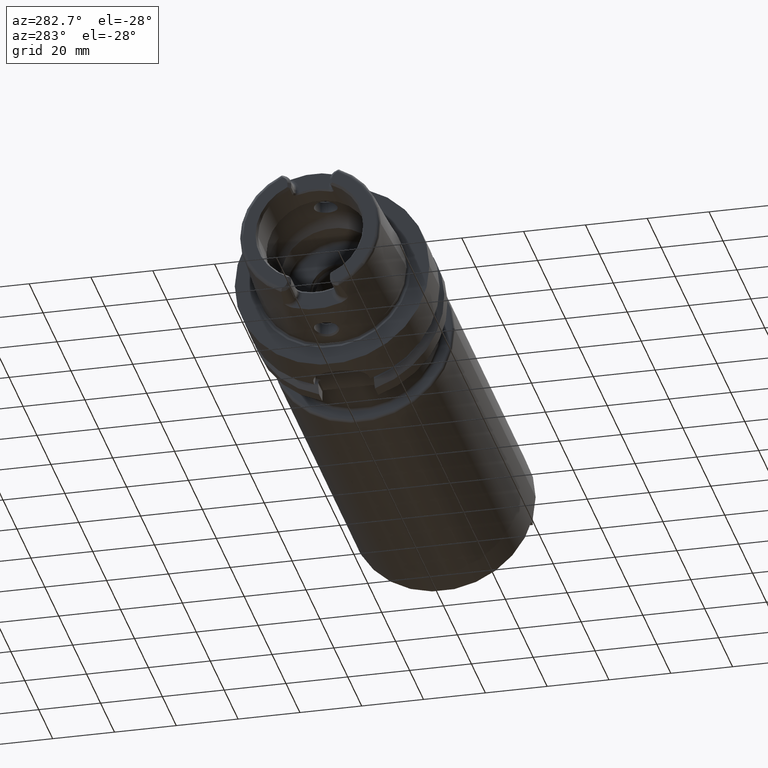
[diagram: clean part render]
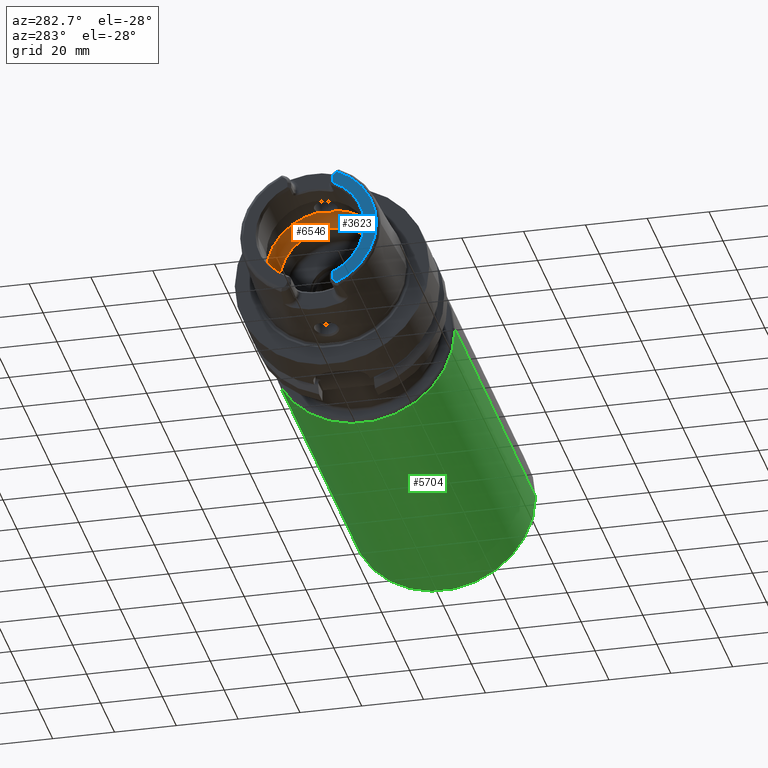
[diagram: same view with three faces highlighted in distinct colors, each labeled with its STEP entity id]
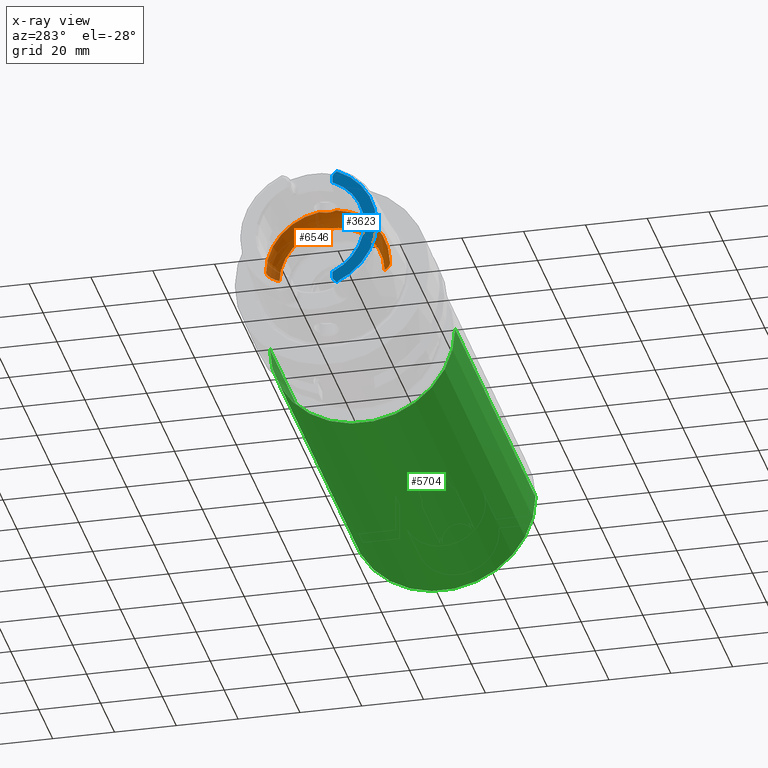
[diagram: x-ray of the same camera — body ghosted, the three highlighted faces saturated]
A machine part, auxiliary view with three faces highlighted in distinct colors.
The next image is the same camera in x-ray (body ghosted, the three faces saturated) — at least one of them is partly hidden behind the body in this view.
Their STEP definitions:

[orange] entity #6546 — the highlighted toroidal blend (fillet) surface has major radius 12 mm and minor (blend) radius 8 mm.
#2471=CARTESIAN_POINT('',(-5.25E0,0.E0,1.992470689575E1));
#2472=CARTESIAN_POINT('',(-5.25E0,1.634249880127E-1,1.992470689575E1));
#2473=CARTESIAN_POINT('',(-5.271317000323E0,4.905125142286E-1,
1.992366860007E1));
#2474=CARTESIAN_POINT('',(-5.367938073203E0,9.753406287590E-1,
1.991846757388E1));
#2475=CARTESIAN_POINT('',(-5.525913254439E0,1.440181253243E0,1.990841194030E1));
#2476=CARTESIAN_POINT('',(-5.745012466850E0,1.883704211740E0,1.989126222791E1));
#2477=CARTESIAN_POINT('',(-6.017092970824E0,2.289932260455E0,1.986481338490E1));
#2478=CARTESIAN_POINT('',(-6.231037578916E0,2.534045566496E0,1.983915065875E1));
#2479=CARTESIAN_POINT('',(-6.344997998398E0,2.648294615690E0,1.982388800484E1));
#2481=CARTESIAN_POINT('',(-6.344997998398E0,-2.648294615690E0,
1.982388800484E1));
#2482=CARTESIAN_POINT('',(-6.231045843136E0,-2.534053851646E0,
1.983914955193E1));
#2483=CARTESIAN_POINT('',(-6.017093742818E0,-2.289943440357E0,
1.986481395775E1));
#2484=CARTESIAN_POINT('',(-5.744901596897E0,-1.883527876206E0,
1.989127237006E1));
#2485=CARTESIAN_POINT('',(-5.525828432433E0,-1.439963272778E0,
1.990841763195E1));
#2486=CARTESIAN_POINT('',(-5.367908372542E0,-9.752317929729E-1,
1.991846926373E1));
#2487=CARTESIAN_POINT('',(-5.271289109403E0,-4.903031116233E-1,
1.992367002777E1));
#2488=CARTESIAN_POINT('',(-5.25E0,-1.633414179458E-1,1.992470689575E1));
#2489=CARTESIAN_POINT('',(-5.25E0,0.E0,1.992470689575E1));
#2491=CARTESIAN_POINT('',(-1.E-1,0.E0,0.E0));
#2492=DIRECTION('',(1.E0,0.E0,0.E0));
#2493=DIRECTION('',(0.E0,1.E0,0.E0));
#2494=AXIS2_PLACEMENT_3D('',#2491,#2492,#2493);
#2516=CARTESIAN_POINT('',(-6.344997998398E0,0.E0,0.E0));
#2517=DIRECTION('',(1.E0,0.E0,0.E0));
#2518=DIRECTION('',(0.E0,1.E0,0.E0));
#2519=AXIS2_PLACEMENT_3D('',#2516,#2517,#2518);
#2521=CARTESIAN_POINT('',(-6.344997998398E0,0.E0,0.E0));
#2522=DIRECTION('',(1.E0,0.E0,0.E0));
#2523=DIRECTION('',(0.E0,-1.324147307845E-1,9.911944002421E-1));
#2524=AXIS2_PLACEMENT_3D('',#2521,#2522,#2523);
#2614=CARTESIAN_POINT('',(-6.344997998398E0,1.2E1,0.E0));
#2615=DIRECTION('',(0.E0,0.E0,1.E0));
#2616=DIRECTION('',(7.806247497998E-1,6.25E-1,0.E0));
#2617=AXIS2_PLACEMENT_3D('',#2614,#2615,#2616);
#2624=CARTESIAN_POINT('',(-6.344997998398E0,-1.2E1,0.E0));
#2625=DIRECTION('',(0.E0,0.E0,-1.E0));
#2626=DIRECTION('',(7.806247497998E-1,-6.25E-1,0.E0));
#2627=AXIS2_PLACEMENT_3D('',#2624,#2625,#2626);
#2893=CARTESIAN_POINT('',(-1.E-1,1.7E1,0.E0));
#2894=VERTEX_POINT('',#2893);
#2895=CARTESIAN_POINT('',(-6.344997998398E0,2.E1,0.E0));
#2896=VERTEX_POINT('',#2895);
#2905=CARTESIAN_POINT('',(-1.E-1,-1.7E1,0.E0));
#2906=VERTEX_POINT('',#2905);
#2907=CARTESIAN_POINT('',(-6.344997998398E0,-2.E1,0.E0));
#2908=VERTEX_POINT('',#2907);
#3076=VERTEX_POINT('',#2471);
#3077=VERTEX_POINT('',#2479);
#3078=VERTEX_POINT('',#2481);
#6527=CARTESIAN_POINT('',(-6.344997998398E0,0.E0,0.E0));
#6528=DIRECTION('',(1.E0,0.E0,0.E0));
#6529=DIRECTION('',(0.E0,-1.E0,0.E0));
#6530=AXIS2_PLACEMENT_3D('',#6527,#6528,#6529);
#6531=TOROIDAL_SURFACE('',#6530,1.2E1,8.E0);
#6532=ORIENTED_EDGE('',*,*,#6504,.F.);
#6533=ORIENTED_EDGE('',*,*,#6270,.F.);
#6535=ORIENTED_EDGE('',*,*,#6534,.T.);
#6537=ORIENTED_EDGE('',*,*,#6536,.F.);
#6539=ORIENTED_EDGE('',*,*,#6538,.F.);
#6541=ORIENTED_EDGE('',*,*,#6540,.T.);
#6543=ORIENTED_EDGE('',*,*,#6542,.T.);
#6544=EDGE_LOOP('',(#6532,#6533,#6535,#6537,#6539,#6541,#6543));
#6545=FACE_OUTER_BOUND('',#6544,.F.);
#6546=ADVANCED_FACE('',(#6545),#6531,.F.);
#2480=B_SPLINE_CURVE_WITH_KNOTS('',3,(#2471,#2472,#2473,#2474,#2475,#2476,#2477,
#2478,#2479),.UNSPECIFIED.,.F.,.F.,(4,1,1,1,1,1,4),(0.E0,1.666666666667E-1,
3.333333333333E-1,5.E-1,6.666666666667E-1,8.333333333333E-1,1.E0),
.UNSPECIFIED.);
#2490=B_SPLINE_CURVE_WITH_KNOTS('',3,(#2481,#2482,#2483,#2484,#2485,#2486,#2487,
#2488,#2489),.UNSPECIFIED.,.F.,.F.,(4,1,1,1,1,1,4),(0.E0,1.666666666667E-1,
3.333333333333E-1,5.E-1,6.666666666667E-1,8.333333333333E-1,1.E0),
.UNSPECIFIED.);
#2495=CIRCLE('',#2494,1.7E1);
#2520=CIRCLE('',#2519,2.E1);
#2525=CIRCLE('',#2524,2.E1);
#2618=CIRCLE('',#2617,8.E0);
#2628=CIRCLE('',#2627,8.E0);
#6270=EDGE_CURVE('',#3078,#3076,#2490,.T.);
#6504=EDGE_CURVE('',#3076,#3077,#2480,.T.);
#6534=EDGE_CURVE('',#3078,#2908,#2525,.T.);
#6536=EDGE_CURVE('',#2906,#2908,#2628,.T.);
#6538=EDGE_CURVE('',#2894,#2906,#2495,.T.);
#6540=EDGE_CURVE('',#2894,#2896,#2618,.T.);
#6542=EDGE_CURVE('',#2896,#3077,#2520,.T.);

[blue] entity #3623 — the highlighted planar face has unit normal (1, 0, 0).
#231=CARTESIAN_POINT('',(-3.2E1,0.E0,0.E0));
#232=DIRECTION('',(-1.E0,0.E0,0.E0));
#233=DIRECTION('',(0.E0,-4.056746540583E-1,-9.140175463604E-1));
#234=AXIS2_PLACEMENT_3D('',#231,#232,#233);
#315=DIRECTION('',(0.E0,0.E0,-1.E0));
#316=VECTOR('',#315,1.666552168805E0);
#317=CARTESIAN_POINT('',(-3.2E1,-7.27E0,-1.600344783120E1));
#318=LINE('',#317,#316);
#319=DIRECTION('',(0.E0,0.E0,1.E0));
#320=VECTOR('',#319,1.666552168805E0);
#321=CARTESIAN_POINT('',(-3.2E1,-7.27E0,1.600344783120E1));
#322=LINE('',#321,#320);
#323=CARTESIAN_POINT('',(-3.2E1,-9.27E0,1.767E1));
#324=DIRECTION('',(1.E0,0.E0,0.E0));
#325=DIRECTION('',(0.E0,1.E0,1.065814103640E-14));
#326=AXIS2_PLACEMENT_3D('',#323,#324,#325);
#328=DIRECTION('',(0.E0,8.373245684230E-1,-5.467061067112E-1));
#329=VECTOR('',#328,6.882400885957E-1);
#330=CARTESIAN_POINT('',(-3.2E1,-8.752868121732E0,1.972091419616E1));
#331=LINE('',#330,#329);
#332=DIRECTION('',(0.E0,8.373245684230E-1,5.467061067112E-1));
#333=VECTOR('',#332,6.882400885957E-1);
#334=CARTESIAN_POINT('',(-3.2E1,-8.752868121732E0,-1.972091419616E1));
#335=LINE('',#334,#333);
#336=CARTESIAN_POINT('',(-3.2E1,-9.27E0,-1.767E1));
#337=DIRECTION('',(-1.E0,0.E0,0.E0));
#338=DIRECTION('',(0.E0,1.E0,0.E0));
#339=AXIS2_PLACEMENT_3D('',#336,#337,#338);
#410=CARTESIAN_POINT('',(-3.2E1,0.E0,0.E0));
#411=DIRECTION('',(1.E0,0.E0,0.E0));
#412=DIRECTION('',(0.E0,-4.136004510727E-1,9.104584926686E-1));
#413=AXIS2_PLACEMENT_3D('',#410,#411,#412);
#2960=CARTESIAN_POINT('',(-3.2E1,-7.27E0,1.600344783120E1));
#2961=CARTESIAN_POINT('',(-3.2E1,-7.27E0,1.767E1));
#2962=VERTEX_POINT('',#2960);
#2963=VERTEX_POINT('',#2961);
#2964=CARTESIAN_POINT('',(-3.2E1,-8.176587786578E0,1.934464913685E1));
#2965=VERTEX_POINT('',#2964);
#2966=CARTESIAN_POINT('',(-3.2E1,-8.752868121732E0,1.972091419616E1));
#2967=VERTEX_POINT('',#2966);
#3057=CARTESIAN_POINT('',(-3.2E1,-7.27E0,-1.600344783120E1));
#3058=CARTESIAN_POINT('',(-3.2E1,-7.27E0,-1.767E1));
#3059=VERTEX_POINT('',#3057);
#3060=VERTEX_POINT('',#3058);
#3061=CARTESIAN_POINT('',(-3.2E1,-8.176587786578E0,-1.934464913685E1));
#3062=VERTEX_POINT('',#3061);
#3063=CARTESIAN_POINT('',(-3.2E1,-8.752868121732E0,-1.972091419616E1));
#3064=VERTEX_POINT('',#3063);
#3601=CARTESIAN_POINT('',(-3.2E1,0.E0,0.E0));
#3602=DIRECTION('',(1.E0,0.E0,0.E0));
#3603=DIRECTION('',(0.E0,-1.E0,0.E0));
#3604=AXIS2_PLACEMENT_3D('',#3601,#3602,#3603);
#3605=PLANE('',#3604);
#3607=ORIENTED_EDGE('',*,*,#3606,.F.);
#3609=ORIENTED_EDGE('',*,*,#3608,.F.);
#3611=ORIENTED_EDGE('',*,*,#3610,.T.);
#3613=ORIENTED_EDGE('',*,*,#3612,.T.);
#3615=ORIENTED_EDGE('',*,*,#3614,.F.);
#3616=ORIENTED_EDGE('',*,*,#3548,.F.);
#3618=ORIENTED_EDGE('',*,*,#3617,.T.);
#3620=ORIENTED_EDGE('',*,*,#3619,.F.);
#3621=EDGE_LOOP('',(#3607,#3609,#3611,#3613,#3615,#3616,#3618,#3620));
#3622=FACE_OUTER_BOUND('',#3621,.F.);
#3623=ADVANCED_FACE('',(#3622),#3605,.F.);
#235=CIRCLE('',#234,2.157607835286E1);
#327=CIRCLE('',#326,2.E0);
#340=CIRCLE('',#339,2.E0);
#414=CIRCLE('',#413,1.757735026919E1);
#3548=EDGE_CURVE('',#3064,#2967,#235,.T.);
#3606=EDGE_CURVE('',#3059,#3060,#318,.T.);
#3608=EDGE_CURVE('',#2962,#3059,#414,.T.);
#3610=EDGE_CURVE('',#2962,#2963,#322,.T.);
#3612=EDGE_CURVE('',#2963,#2965,#327,.T.);
#3614=EDGE_CURVE('',#2967,#2965,#331,.T.);
#3617=EDGE_CURVE('',#3064,#3062,#335,.T.);
#3619=EDGE_CURVE('',#3060,#3062,#340,.T.);

[green] entity #5704 — the highlighted cylindrical surface (partial cylindrical patch) has radius 30 mm, axis along (1, 0, 0).
#2110=CARTESIAN_POINT('',(4.35E1,0.E0,0.E0));
#2111=DIRECTION('',(1.E0,0.E0,0.E0));
#2112=DIRECTION('',(0.E0,-1.E0,0.E0));
#2113=AXIS2_PLACEMENT_3D('',#2110,#2111,#2112);
#2115=DIRECTION('',(-1.E0,0.E0,0.E0));
#2116=VECTOR('',#2115,1.155E2);
#2117=CARTESIAN_POINT('',(1.59E2,-3.E1,4.807194254804E-14));
#2118=LINE('',#2117,#2116);
#2119=CARTESIAN_POINT('',(1.59E2,0.E0,0.E0));
#2120=DIRECTION('',(-1.E0,0.E0,0.E0));
#2121=DIRECTION('',(0.E0,1.E0,0.E0));
#2122=AXIS2_PLACEMENT_3D('',#2119,#2120,#2121);
#2124=DIRECTION('',(-1.E0,0.E0,0.E0));
#2125=VECTOR('',#2124,1.155E2);
#2126=CARTESIAN_POINT('',(1.59E2,3.E1,-4.899042764740E-14));
#2127=LINE('',#2126,#2125);
#3281=CARTESIAN_POINT('',(1.59E2,3.E1,0.E0));
#3282=CARTESIAN_POINT('',(1.59E2,-3.E1,0.E0));
#3283=VERTEX_POINT('',#3281);
#3284=VERTEX_POINT('',#3282);
#3376=CARTESIAN_POINT('',(4.35E1,-3.E1,0.E0));
#3377=CARTESIAN_POINT('',(4.35E1,3.E1,0.E0));
#3378=VERTEX_POINT('',#3376);
#3379=VERTEX_POINT('',#3377);
#5690=CARTESIAN_POINT('',(1.825E1,0.E0,0.E0));
#5691=DIRECTION('',(1.E0,0.E0,0.E0));
#5692=DIRECTION('',(0.E0,-1.E0,0.E0));
#5693=AXIS2_PLACEMENT_3D('',#5690,#5691,#5692);
#5694=CYLINDRICAL_SURFACE('',#5693,3.E1);
#5695=ORIENTED_EDGE('',*,*,#5680,.F.);
#5697=ORIENTED_EDGE('',*,*,#5696,.F.);
#5699=ORIENTED_EDGE('',*,*,#5698,.F.);
#5701=ORIENTED_EDGE('',*,*,#5700,.T.);
#5702=EDGE_LOOP('',(#5695,#5697,#5699,#5701));
#5703=FACE_OUTER_BOUND('',#5702,.F.);
#5704=ADVANCED_FACE('',(#5703),#5694,.T.);
#2114=CIRCLE('',#2113,3.E1);
#2123=CIRCLE('',#2122,3.E1);
#5680=EDGE_CURVE('',#3378,#3379,#2114,.T.);
#5696=EDGE_CURVE('',#3284,#3378,#2118,.T.);
#5698=EDGE_CURVE('',#3283,#3284,#2123,.T.);
#5700=EDGE_CURVE('',#3283,#3379,#2127,.T.);